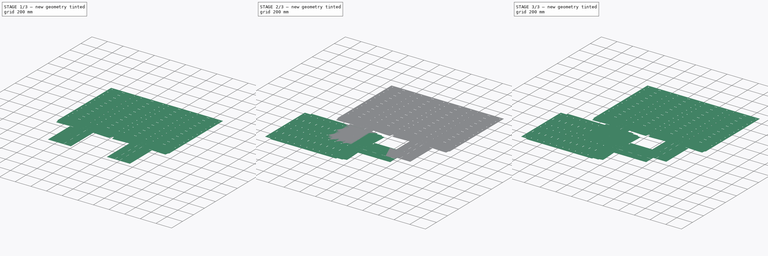
[diagram: build sequence overview — one tinted view per stage of 3, left to right]
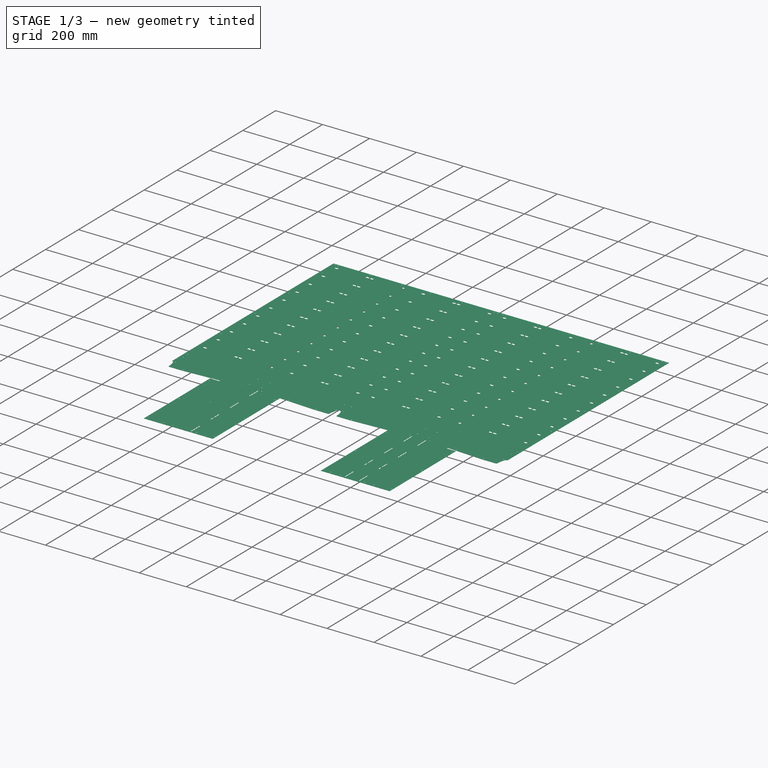
[diagram: stage 1 of 3 — iso view after this stage's code; geometry added in this stage tinted green]
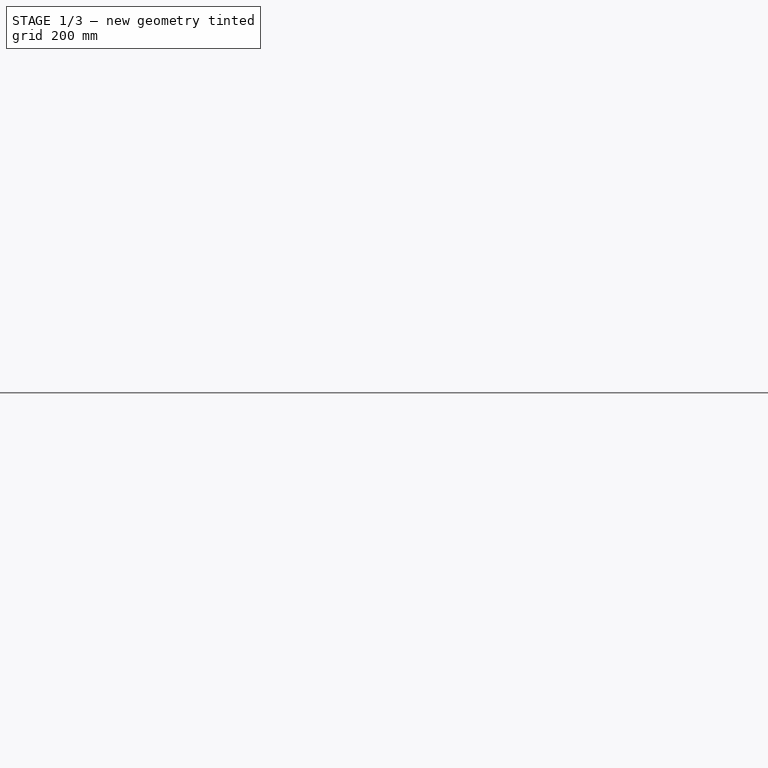
[diagram: stage 1 of 3 — front view after this stage's code; geometry added in this stage tinted green]
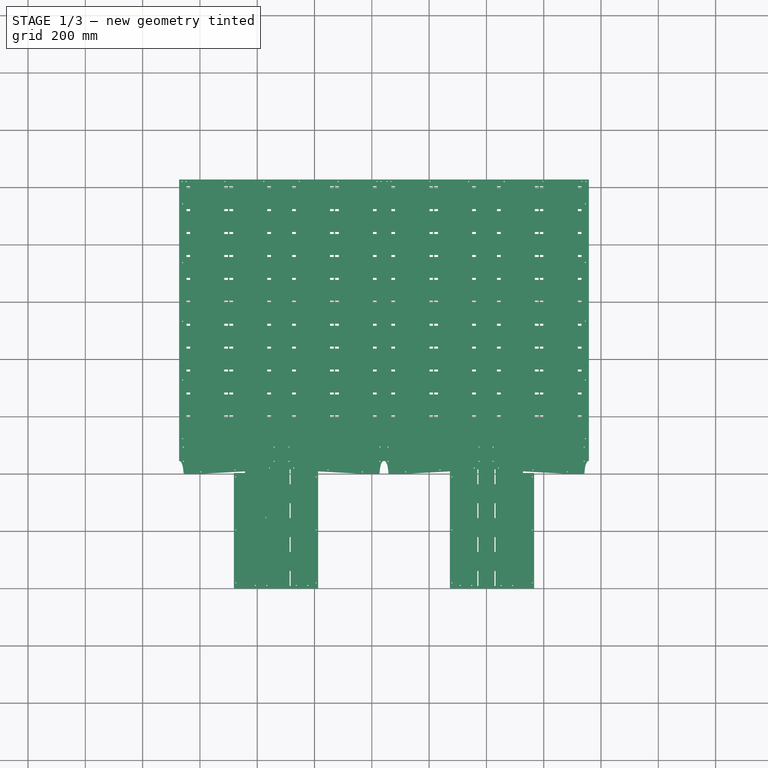
[diagram: stage 1 of 3 — top view after this stage's code; geometry added in this stage tinted green]
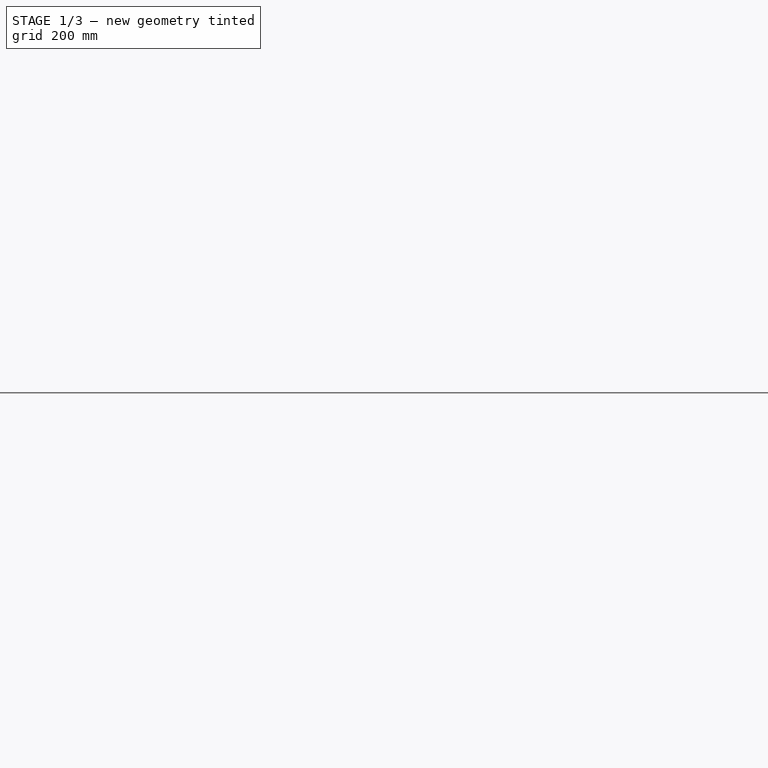
[diagram: stage 1 of 3 — right view after this stage's code; geometry added in this stage tinted green]
FCSTD DOCUMENT  (FreeCAD 0.21R33345 (Git))
Label: composit_full_size3_composit_sink_fix
License: All rights reserved
LicenseURL: http://en.wikipedia.org/wiki/All_rights_reserved
objects: Sketcher::SketchObject×6, PartDesign::Mirrored×3, App::DocumentObjectGroup×3, App::Link×2, Part::Feature×2, PartDesign::FeatureBase×2, PartDesign::Pad×2, PartDesign::Pocket×2, PartDesign::Body×2, PartDesign::SubShapeBinder×1, PartDesign::Plane×1, PartDesign::MultiTransform×1
note: 26 computed .brp shape members not serialized (recipe doc carries the construction recipe); baked Part::Feature solids carry a one-line shape summary decoded from their .brp

FEATURE [App::Link] Link019  label="part1_bends"
  LinkClaimChild = true
  LinkedObject = -> Unfold_Sketch_bends012
FEATURE [App::Link] Link020  label="part2_bends"
  LinkClaimChild = true
  LinkedObject = -> Unfold_Sketch_bends
FEATURE [Part::Feature] Unfold  label="part2_unfold"
  Placement = pos=(0,0,351.872) rot=(0.377964,0.654654,0.654654;3.86433rad)
  shape: bbox 1430 x 1428 x 0.3026 mm, 861 faces (baked)
FEATURE [PartDesign::FeatureBase] BaseFeature001
  BaseFeature = -> Unfold
  Placement = pos=(0,0,351.872) rot=(0.377964,0.654654,0.654654;3.86433rad)
  expr: BaseFeature = <<part2_unfold>>._self
  expr: Placement = .BaseFeature.Placement
FEATURE [PartDesign::Body] Body  label="part1_body"
  BaseFeature = -> Unfold012
  Group = -> [BaseFeature,Sketch,Sketch001,Pad,Pocket,Mirrored]
  Origin = -> Origin
  Tip = -> Mirrored
FEATURE [App::DocumentObjectGroup] Group  label="part1"
  Group = -> [Body,Unfold012,Link019]
FEATURE [PartDesign::SubShapeBinder] Binder
  BindCopyOnChange = 0
  BindMode = 0
  ClaimChildren = false
  Context = -> Body001 [Binder.]
  Fuse = false
  MakeFace = true
  OffsetFill = false
  OffsetIntersection = false
  OffsetJoinType = 0
  OffsetOpenResult = false
  PartialLoad = false
  Relative = true
  Support = -> [Link020[Edge8]]
  _Version = 2
FEATURE [PartDesign::Plane] DatumPlane
  AttachmentOffset = pos=(0,0,0) rot=(0,1,0;1.5708rad)
  Length = 1721.32
  MapMode = 7
  Placement = pos=(-357.54,1428,0) rot=(-0.57735,0.57735,0.57735;4.18879rad)
  ResizeMode = 0
  Support = -> [Binder]
  Width = 1507.11
FEATURE [Sketcher::SketchObject] Sketch002
  ExternalGeometry = -> [BaseFeature001]
  FullyConstrained = true
  MapMode = 5
  Support = -> [XY_Plane001]
  sketch-geometry (4):
    g0: Circle CenterX=23.47 CenterY=444 CenterZ=0 NormalX=0 NormalY=0 NormalZ=1 AngleXU=0 Radius=1.7
    g1: Circle CenterX=23.47 CenterY=494 CenterZ=0 NormalX=0 NormalY=0 NormalZ=1 AngleXU=0 Radius=1.7
    g2: Circle CenterX=341.123 CenterY=444 CenterZ=0 NormalX=0 NormalY=0 NormalZ=1 AngleXU=0 Radius=1.7
    g3: Circle CenterX=341.123 CenterY=494 CenterZ=0 NormalX=0 NormalY=0 NormalZ=1 AngleXU=0 Radius=1.7
  constraints (12):
    c: DistanceX(g-6,g0) = -2.4
    c: Horizontal(g-6,g0)
    c: Horizontal(g-3,g1)
    c: Vertical(g0,g1)
    c: DistanceX(g-5,g2) = -2
    c: Horizontal(g-5,g2)
    c: Vertical(g2,g3)
    c: Horizontal(g-4,g3)
    c: Equal(g-6,g0)
    c: Equal(g0,g1)
    c: Equal(g1,g3)
    c: Equal(g3,g2)
FEATURE [Sketcher::SketchObject] Sketch003
  FullyConstrained = false
  MapMode = 5
  Placement = pos=(-1.953e-13,1.109e-13,0.000421097) rot=(0,1,0;3.14159rad)
  Support = -> [BaseFeature001]
  sketch-geometry (4):
    g0: LineSegment StartX=-22.8537 StartY=440.301 StartZ=0 EndX=-345.754 EndY=440.301 EndZ=0
    g1: LineSegment StartX=-345.754 StartY=440.301 StartZ=0 EndX=-345.754 EndY=497.568 EndZ=0
    g2: LineSegment StartX=-345.754 StartY=497.568 StartZ=0 EndX=-22.8537 EndY=497.568 EndZ=0
    g3: LineSegment StartX=-22.8537 StartY=497.568 StartZ=0 EndX=-22.8537 EndY=440.301 EndZ=0
  constraints (8):
    c: Coincident(g0,g1)
    c: Coincident(g1,g2)
    c: Coincident(g2,g3)
    c: Coincident(g3,g0)
    c: Horizontal(g0)
    c: Horizontal(g2)
    c: Vertical(g1)
    c: Vertical(g3)
FEATURE [PartDesign::Pad] Pad001
  BaseFeature = -> BaseFeature001
  Direction = (-6e-16,3e-16,-1)
  Length = 10
  Length2 = 10
  Placement = pos=(0,0,351.872) rot=(0.377964,0.654654,0.654654;3.86433rad)
  Profile = -> Sketch003
  ReferenceAxis = -> Sketch003 [N_Axis]
  Reversed = true
  Type = 2
FEATURE [PartDesign::Pocket] Pocket001
  BaseFeature = -> Pad001
  Direction = (0,0,-1)
  Length = 5
  Length2 = 5
  Midplane = true
  Placement = pos=(0,0,351.872) rot=(0.377964,0.654654,0.654654;3.86433rad)
  Profile = -> Sketch002
  ReferenceAxis = -> Sketch002 [N_Axis]
  Type = 1
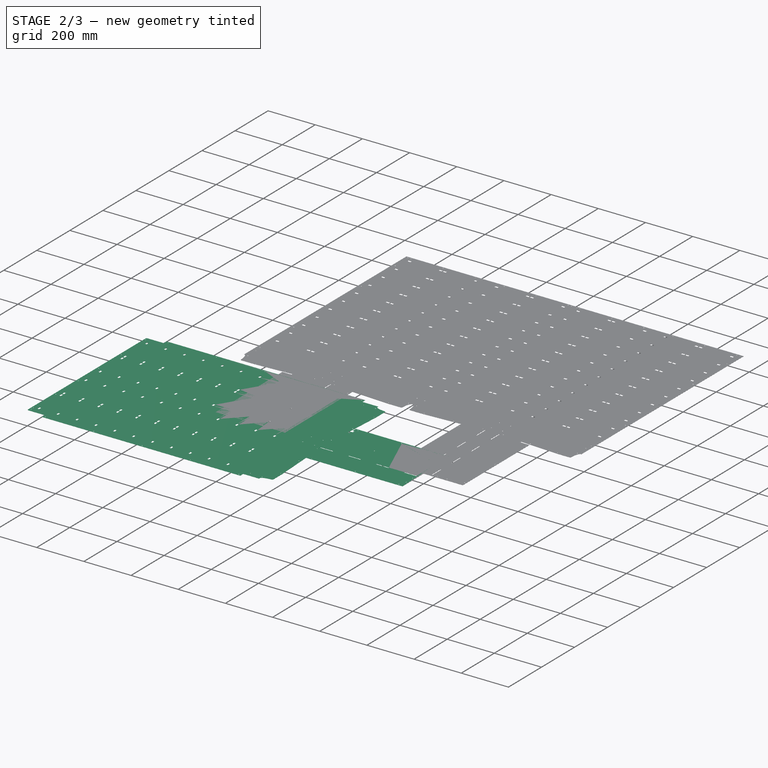
[diagram: stage 2 of 3 — iso view after this stage's code; geometry added in this stage tinted green]
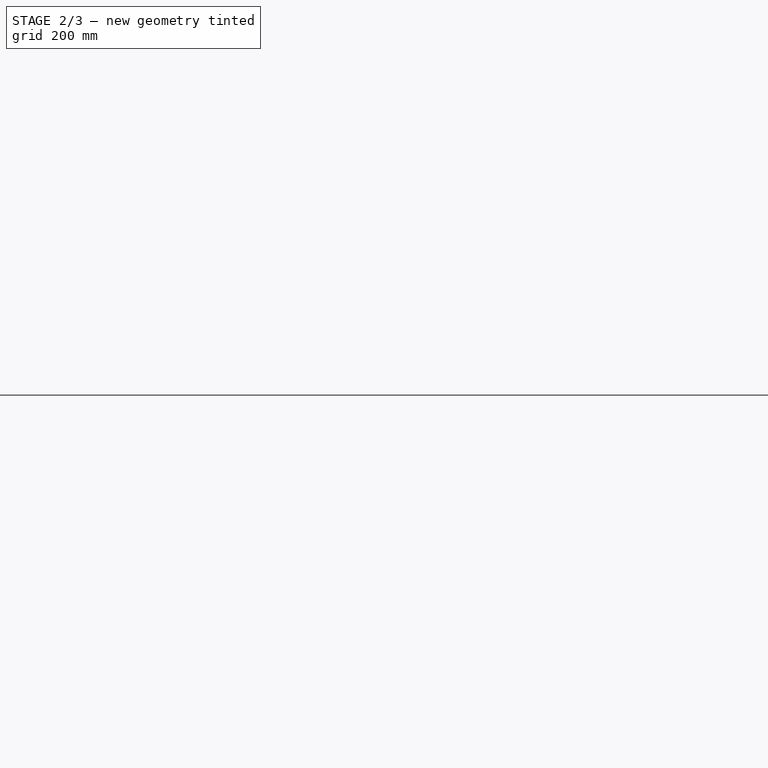
[diagram: stage 2 of 3 — front view after this stage's code; geometry added in this stage tinted green]
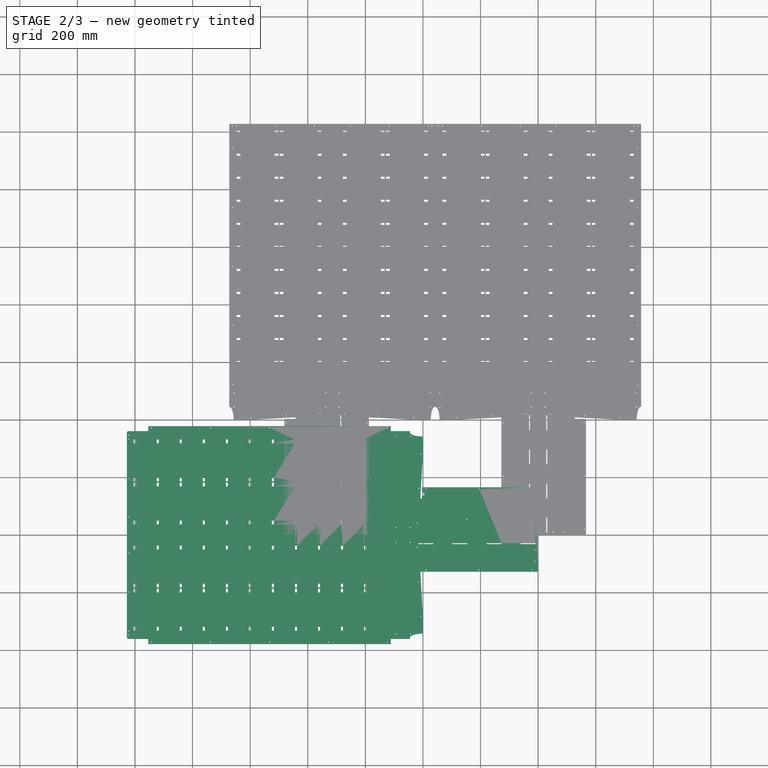
[diagram: stage 2 of 3 — top view after this stage's code; geometry added in this stage tinted green]
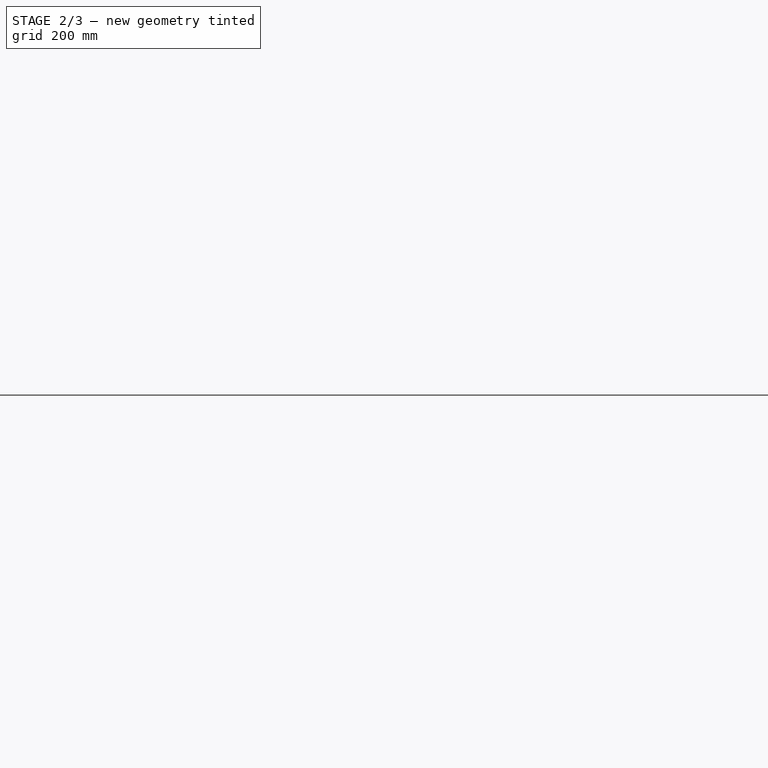
[diagram: stage 2 of 3 — right view after this stage's code; geometry added in this stage tinted green]
FEATURE [Part::Feature] Unfold012  label="part1_unfold"
  Placement = pos=(0,0,351.872) rot=(0.57735,0.57735,-0.57735;4.18879rad)
  shape: bbox 1428 x 757.1 x 0.3026 mm, 445 faces (baked)
FEATURE [PartDesign::FeatureBase] BaseFeature
  BaseFeature = -> Unfold012
  Placement = pos=(0,0,351.872) rot=(0.57735,0.57735,-0.57735;4.18879rad)
  expr: BaseFeature = <<part1_unfold>>._self
  expr: Placement = .BaseFeature.Placement
FEATURE [PartDesign::Mirrored] Mirrored001
  MirrorPlane = -> YZ_Plane001
  Placement = pos=(0,0,351.872) rot=(0.377964,0.654654,0.654654;3.86433rad)
FEATURE [PartDesign::Mirrored] Mirrored002
  MirrorPlane = -> DatumPlane
  Placement = pos=(0,0,351.872) rot=(0.377964,0.654654,0.654654;3.86433rad)
FEATURE [PartDesign::MultiTransform] MultiTransform
  BaseFeature = -> Pocket001
  Originals = -> [Pad001,Pocket001]
  Placement = pos=(0,0,351.872) rot=(0.377964,0.654654,0.654654;3.86433rad)
  Transformations = -> [Mirrored001,Mirrored002]
FEATURE [PartDesign::Body] Body001  label="part2_body"
  BaseFeature = -> Unfold
  Group = -> [BaseFeature001,Binder,DatumPlane,Sketch002,Sketch003,Pad001,Pocket001,MultiTransform,Mirrored001,Mirrored002]
  Origin = -> Origin001
  Tip = -> MultiTransform
FEATURE [App::DocumentObjectGroup] Group001  label="part2"
  Group = -> [Body001,Unfold,Link020]
FEATURE [App::DocumentObjectGroup] Group002  label="Group"
  Group = -> [Group,Group001]
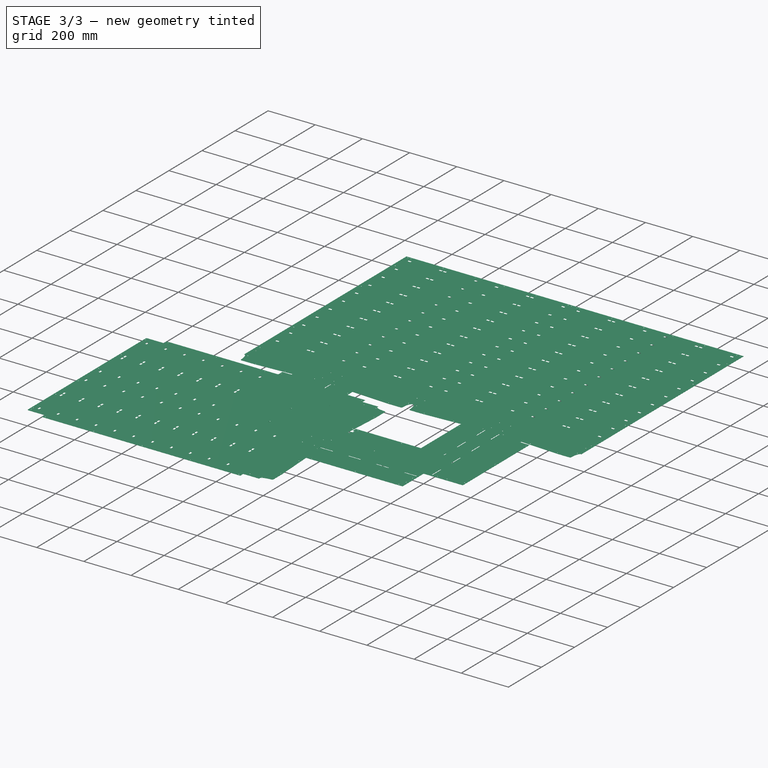
[diagram: stage 3 of 3 — iso view after this stage's code; geometry added in this stage tinted green]
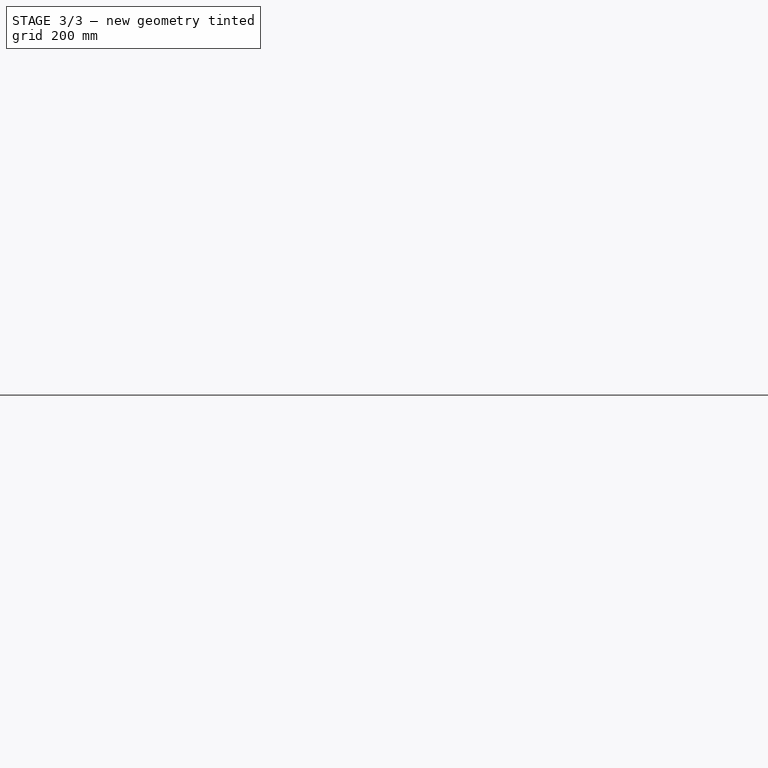
[diagram: stage 3 of 3 — front view after this stage's code; geometry added in this stage tinted green]
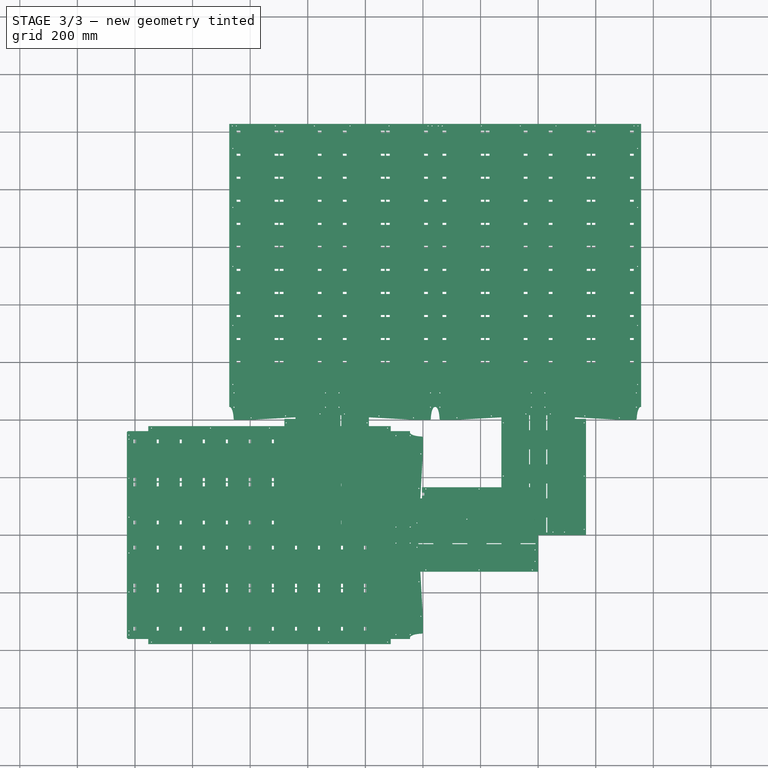
[diagram: stage 3 of 3 — top view after this stage's code; geometry added in this stage tinted green]
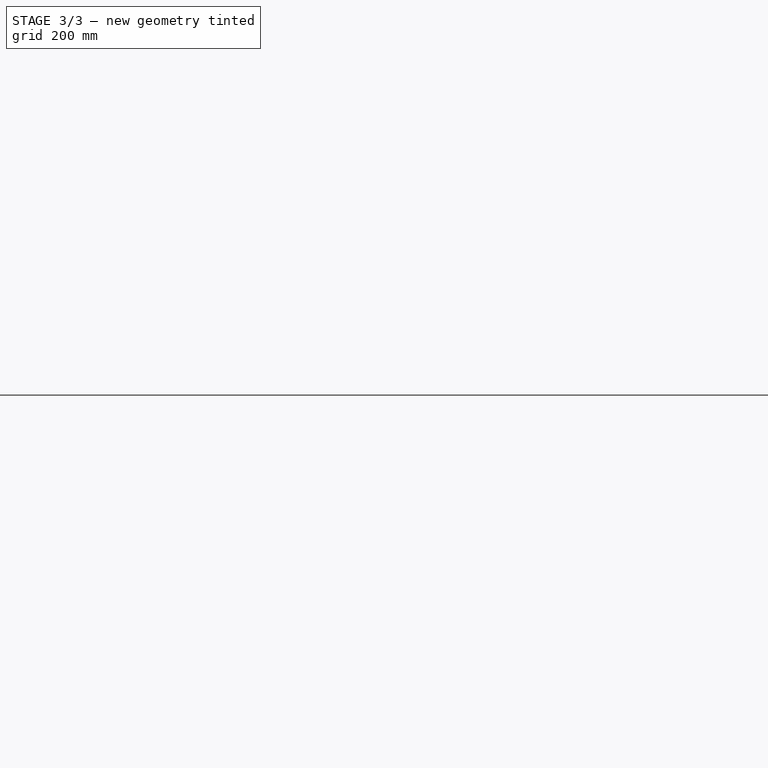
[diagram: stage 3 of 3 — right view after this stage's code; geometry added in this stage tinted green]
FEATURE [Sketcher::SketchObject] Unfold_Sketch_bends  label="Unfold_Sketch_bends013"
  FullyConstrained = false
  sketch-geometry (9):
    g0: LineSegment StartX=153.146 StartY=403.5 StartZ=0 EndX=153.146 EndY=0 EndZ=0
    g1: LineSegment StartX=127.648 StartY=403.5 StartZ=0 EndX=127.648 EndY=0 EndZ=0
    g2: LineSegment StartX=14.2492 StartY=1428 StartZ=0 EndX=14.2492 EndY=0 EndZ=0
    g3: LineSegment StartX=-868.227 StartY=403.5 StartZ=0 EndX=-868.227 EndY=0 EndZ=0
    g4: LineSegment StartX=-842.728 StartY=403.5 StartZ=0 EndX=-842.728 EndY=0 EndZ=0
    g5: LineSegment StartX=-729.33 StartY=1428 StartZ=0 EndX=-729.33 EndY=0 EndZ=0
    g6: LineSegment StartX=-700.831 StartY=1428 StartZ=0 EndX=-700.831 EndY=0 EndZ=0
    g7: LineSegment StartX=-357.54 StartY=1428 StartZ=0 EndX=-357.54 EndY=445 EndZ=0
    g8: LineSegment StartX=-14.2492 StartY=1428 StartZ=0 EndX=-14.2492 EndY=0 EndZ=0
FEATURE [Sketcher::SketchObject] Unfold_Sketch_bends012
  FullyConstrained = false
  sketch-geometry (6):
    g0: LineSegment StartX=-1354 StartY=-361.004 StartZ=0 EndX=-512 EndY=-361.004 EndZ=0
    g1: LineSegment StartX=-1428 StartY=-14.2492 StartZ=0 EndX=0 EndY=-14.2492 EndZ=0
    g2: LineSegment StartX=-403.5 StartY=153.146 StartZ=0 EndX=0 EndY=153.146 EndZ=0
    g3: LineSegment StartX=-403.5 StartY=127.648 StartZ=0 EndX=0 EndY=127.648 EndZ=0
    g4: LineSegment StartX=-1354 StartY=361.004 StartZ=0 EndX=-512 EndY=361.004 EndZ=0
    g5: LineSegment StartX=-1428 StartY=14.2492 StartZ=0 EndX=0 EndY=14.2492 EndZ=0
FEATURE [Sketcher::SketchObject] Sketch
  ExternalGeometry = -> [BaseFeature]
  FullyConstrained = true
  MapMode = 5
  Support = -> [XY_Plane]
  sketch-geometry (4):
    g0: Circle CenterX=-494 CenterY=345.523 CenterZ=0 NormalX=0 NormalY=0 NormalZ=1 AngleXU=0 Radius=1.7
    g1: Circle CenterX=-444 CenterY=345.523 CenterZ=0 NormalX=0 NormalY=0 NormalZ=1 AngleXU=0 Radius=1.7
    g2: Circle CenterX=-494 CenterY=27.87 CenterZ=0 NormalX=0 NormalY=0 NormalZ=1 AngleXU=0 Radius=1.7
    g3: Circle CenterX=-444 CenterY=27.87 CenterZ=0 NormalX=0 NormalY=0 NormalZ=1 AngleXU=0 Radius=1.7
  constraints (12):
    c: Vertical(g-5,g0)
    c: Vertical(g-6,g1)
    c: DistanceY(g-5,g0) = 2.4
    c: Horizontal(g0,g1)
    c: DistanceY(g-3,g2) = 2
    c: Vertical(g-3,g2)
    c: Horizontal(g2,g3)
    c: Vertical(g-4,g3)
    c: Equal(g-3,g2)
    c: Equal(g2,g3)
    c: Equal(g3,g1)
    c: Equal(g1,g0)
FEATURE [Sketcher::SketchObject] Sketch001
  FullyConstrained = false
  MapMode = 5
  Placement = pos=(-1.76e-14,1.76e-14,2.10968e-05) rot=(-0.707107,0.707107,0;3.14159rad)
  Support = -> [BaseFeature]
  sketch-geometry (4):
    g0: LineSegment StartX=-346.673 StartY=497.828 StartZ=0 EndX=-20.2676 EndY=497.828 EndZ=0
    g1: LineSegment StartX=-20.2676 StartY=497.828 StartZ=0 EndX=-20.2676 EndY=440.388 EndZ=0
    g2: LineSegment StartX=-20.2676 StartY=440.388 StartZ=0 EndX=-346.673 EndY=440.388 EndZ=0
    g3: LineSegment StartX=-346.673 StartY=440.388 StartZ=0 EndX=-346.673 EndY=497.828 EndZ=0
  constraints (8):
    c: Coincident(g0,g1)
    c: Coincident(g1,g2)
    c: Coincident(g2,g3)
    c: Coincident(g3,g0)
    c: Horizontal(g0)
    c: Horizontal(g2)
    c: Vertical(g1)
    c: Vertical(g3)
FEATURE [PartDesign::Pad] Pad
  BaseFeature = -> BaseFeature
  Direction = (0,0,-1)
  Length = 10
  Length2 = 10
  Placement = pos=(0,0,351.872) rot=(0.57735,0.57735,-0.57735;4.18879rad)
  Profile = -> Sketch001
  ReferenceAxis = -> Sketch001 [N_Axis]
  Refine = true
  Reversed = true
  Type = 2
FEATURE [PartDesign::Pocket] Pocket
  BaseFeature = -> Pad
  Direction = (0,0,-1)
  Length = 5
  Length2 = 5
  Midplane = true
  Placement = pos=(0,0,351.872) rot=(0.57735,0.57735,-0.57735;4.18879rad)
  Profile = -> Sketch
  ReferenceAxis = -> Sketch [N_Axis]
  Type = 1
FEATURE [PartDesign::Mirrored] Mirrored
  BaseFeature = -> Pocket
  MirrorPlane = -> XZ_Plane
  Originals = -> [Pad,Pocket]
  Placement = pos=(0,0,351.872) rot=(0.57735,0.57735,-0.57735;4.18879rad)
  Refine = true
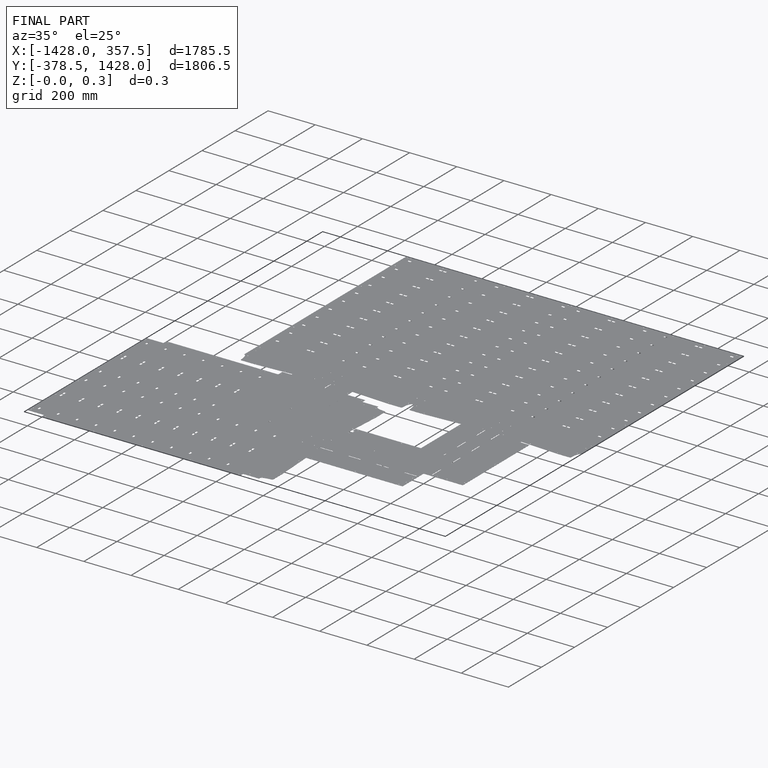
[diagram: finished part — iso view with bounding-box wireframe]
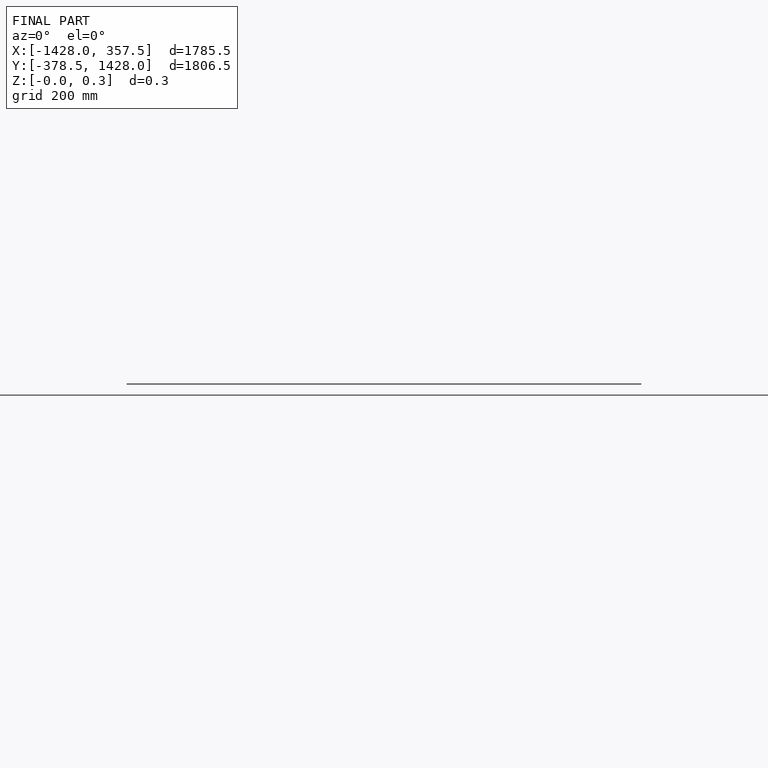
[diagram: finished part — front view with bounding-box wireframe]
